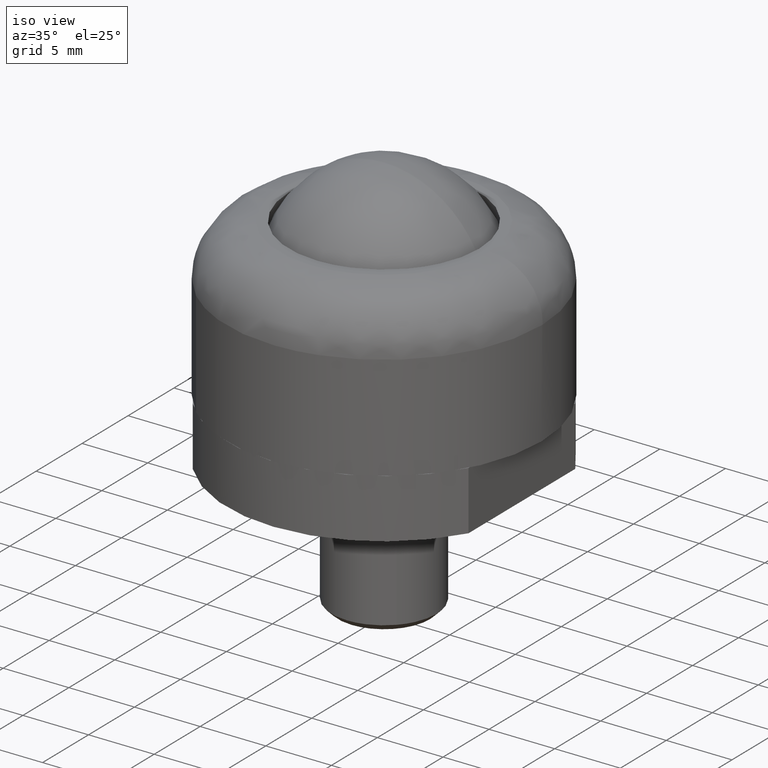
[diagram: clean part render]
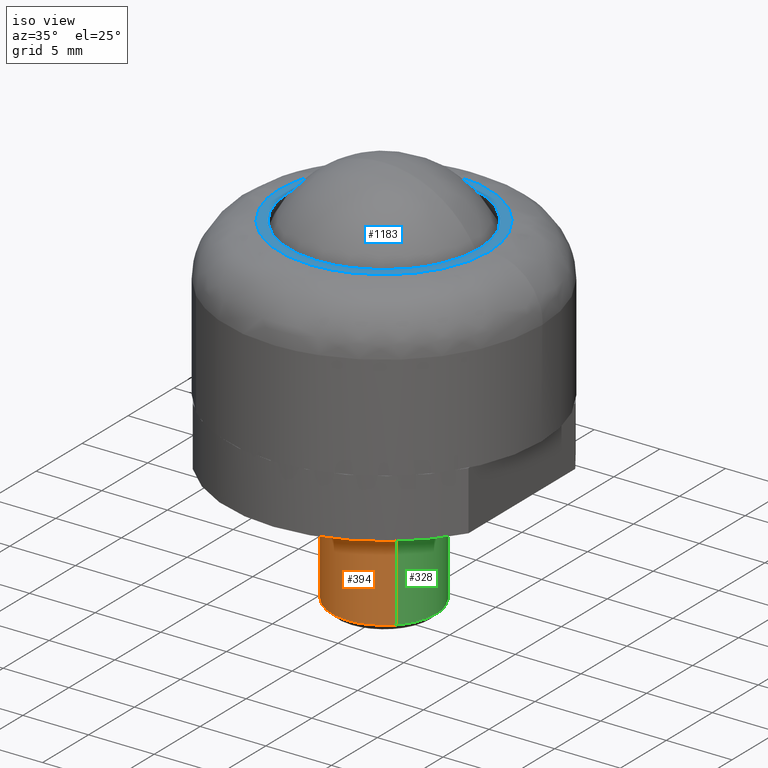
[diagram: same view with three faces highlighted in distinct colors, each labeled with its STEP entity id]
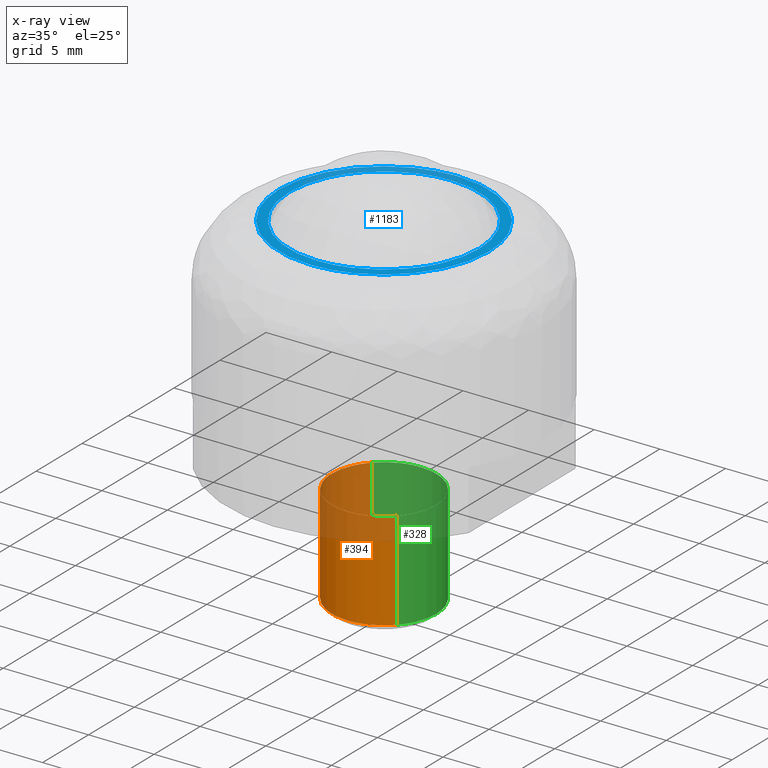
[diagram: x-ray of the same camera — body ghosted, the three highlighted faces saturated]
A machine part, iso view with three faces highlighted in distinct colors.
The next image is the same camera in x-ray (body ghosted, the three faces saturated) — at least one of them is partly hidden behind the body in this view.
Their STEP definitions:

[orange] entity #394 — the highlighted face is a freeform B-spline surface patch.
#109=CARTESIAN_POINT('',(-0.000000403236828,-3.999999999999980,-14.0));
#110=VERTEX_POINT('',#109);
#111=CARTESIAN_POINT('',(-2.702360932232386,-2.949109458302872,-13.999999949787229));
#112=VERTEX_POINT('',#111);
#113=CARTESIAN_POINT('',(-0.000000403236828,-3.999999999999980,-14.0));
#114=CARTESIAN_POINT('',(-0.278167836952644,-4.000048685927483,-13.999999994831359));
#115=CARTESIAN_POINT('',(-0.695388015147952,-3.956286404520441,-13.999999987078951));
#116=CARTESIAN_POINT('',(-1.308390601014381,-3.792701276067524,-13.999999975688700));
#117=CARTESIAN_POINT('',(-1.966955427198719,-3.518918987938443,-13.999999963451851));
#118=CARTESIAN_POINT('',(-2.440376931060388,-3.189324229551553,-13.999999954655170));
#119=CARTESIAN_POINT('',(-2.702360932232386,-2.949109458302872,-13.999999949787229));
#120=B_SPLINE_CURVE_WITH_KNOTS('',3,(#113,#114,#115,#116,#117,#118,#119),.UNSPECIFIED.,.F.,.U.,(4,1,1,1,4),(0.000000010413954,0.834490467376314,1.251737349873453,1.900782333701609,2.967075987039249),.UNSPECIFIED.);
#121=EDGE_CURVE('',#110,#112,#120,.T.);
#151=CARTESIAN_POINT('',(2.901497408814397,-2.753418235807070,-14.0));
#152=VERTEX_POINT('',#151);
#163=CARTESIAN_POINT('',(2.901497408814397,-2.753418235807070,-14.0));
#164=CARTESIAN_POINT('',(2.726940716344596,-2.937411264398880,-13.999999999999970));
#165=CARTESIAN_POINT('',(2.381075393225612,-3.238528325721102,-14.000000000000041));
#166=CARTESIAN_POINT('',(1.815662922786014,-3.581532204456942,-13.999999999999980));
#167=CARTESIAN_POINT('',(1.220451748592487,-3.828373434111331,-13.999999999999989));
#168=CARTESIAN_POINT('',(0.608683923174013,-3.970479055919756,-14.000000000000069));
#169=CARTESIAN_POINT('',(0.185984997623498,-4.000006531506661,-13.999999999999959));
#170=CARTESIAN_POINT('',(-0.000000403236828,-3.999999999999980,-14.0));
#171=B_SPLINE_CURVE_WITH_KNOTS('',3,(#163,#164,#165,#166,#167,#168,#169,#170),.UNSPECIFIED.,.F.,.U.,(4,1,1,1,1,4),(0.000000011243450,0.760858928234428,1.369552959612127,1.978233202727078,2.688373681699523,3.246334517595858),.UNSPECIFIED.);
#172=EDGE_CURVE('',#152,#110,#171,.T.);
#195=CARTESIAN_POINT('',(-4.0,0.0,-14.0));
#196=VERTEX_POINT('',#195);
#197=CARTESIAN_POINT('',(-2.702360932232386,-2.949109458302872,-13.999999949787229));
#198=CARTESIAN_POINT('',(-2.893394730014387,-2.774106049758989,-13.999999952766920));
#199=CARTESIAN_POINT('',(-3.183262002286620,-2.451335581721173,-13.999999958262521));
#200=CARTESIAN_POINT('',(-3.510124101917242,-1.941319656537292,-13.999999966946289));
#201=CARTESIAN_POINT('',(-3.775802720940005,-1.377713114645031,-13.999999976542471));
#202=CARTESIAN_POINT('',(-3.957740616849472,-0.725407266192422,-13.999999987648939));
#203=CARTESIAN_POINT('',(-4.000011620954692,-0.224528139693912,-13.999999996177049));
#204=CARTESIAN_POINT('',(-4.0,0.0,-14.0));
#205=B_SPLINE_CURVE_WITH_KNOTS('',3,(#197,#198,#199,#200,#201,#202,#203,#204),.UNSPECIFIED.,.F.,.U.,(4,1,1,1,1,4),(9.982578E-009,0.777222156433196,1.295373726180837,1.813510334534018,2.642558074383099,3.316148824474379),.UNSPECIFIED.);
#206=EDGE_CURVE('',#112,#196,#205,.T.);
#208=CARTESIAN_POINT('',(-2.901497408814396,2.753418235807069,-14.0));
#209=VERTEX_POINT('',#208);
#210=CARTESIAN_POINT('',(-4.0,0.0,-14.0));
#211=CARTESIAN_POINT('',(-4.000034488636911,0.268892826001609,-14.000000000000011));
#212=CARTESIAN_POINT('',(-3.950372442837322,0.759208619095613,-13.999999999999989));
#213=CARTESIAN_POINT('',(-3.767579752082468,1.383743951598321,-14.0));
#214=CARTESIAN_POINT('',(-3.459143000504768,2.061585654993756,-14.000000000000020));
#215=CARTESIAN_POINT('',(-3.152034080166087,2.489617425547130,-13.999999999999980));
#216=CARTESIAN_POINT('',(-2.901497408814396,2.753418235807069,-14.0));
#217=B_SPLINE_CURVE_WITH_KNOTS('',3,(#210,#211,#212,#213,#214,#215,#216),.UNSPECIFIED.,.F.,.U.,(4,1,1,1,4),(9.817746E-009,0.806674670906880,1.470999374270432,1.945504255010293,3.036890669432862),.UNSPECIFIED.);
#218=EDGE_CURVE('',#196,#209,#217,.T.);
#268=CARTESIAN_POINT('',(-2.901497408787624,2.753418235835281,-6.500000000000571));
#269=VERTEX_POINT('',#268);
#300=CARTESIAN_POINT('',(2.901497408787625,-2.753418235835282,-6.500000000000570));
#301=VERTEX_POINT('',#300);
#312=CARTESIAN_POINT('',(2.901497408787625,-2.753418235835282,-6.500000000000570));
#313=CARTESIAN_POINT('',(2.901497408814397,-2.753418235807070,-14.0));
#314=QUASI_UNIFORM_CURVE('',1,(#312,#313),.UNSPECIFIED.,.F.,.U.);
#315=EDGE_CURVE('',#301,#152,#314,.T.);
#321=CARTESIAN_POINT('',(-2.901497408787624,2.753418235835281,-6.500000000000571));
#322=CARTESIAN_POINT('',(-2.901497408814396,2.753418235807069,-14.0));
#323=QUASI_UNIFORM_CURVE('',1,(#321,#322),.UNSPECIFIED.,.F.,.U.);
#324=EDGE_CURVE('',#269,#209,#323,.T.);
#329=CARTESIAN_POINT('',(2.901497484049150,-2.753418302775015,-6.312499999999999));
#330=CARTESIAN_POINT('',(0.148079181274134,-5.654915786824165,-6.312499999999999));
#331=CARTESIAN_POINT('',(-2.753418302775015,-2.901497484049150,-6.312499999999999));
#332=CARTESIAN_POINT('',(-5.654915786824165,-0.148079181274134,-6.312499999999999));
#333=CARTESIAN_POINT('',(-2.901497484049150,2.753418302775015,-6.312499999999999));
#334=CARTESIAN_POINT('',(2.901497484049150,-2.753418302775015,-14.192187499999999));
#335=CARTESIAN_POINT('',(0.148079181274134,-5.654915786824165,-14.192187500000008));
#336=CARTESIAN_POINT('',(-2.753418302775015,-2.901497484049150,-14.192187499999999));
#337=CARTESIAN_POINT('',(-5.654915786824165,-0.148079181274134,-14.192187500000008));
#338=CARTESIAN_POINT('',(-2.901497484049150,2.753418302775015,-14.192187499999999));
#346=(BOUNDED_SURFACE()B_SPLINE_SURFACE(2,1,((#329,#334),(#330,#335),(#331,#336),(#332,#337),(#333,#338)),.UNSPECIFIED.,.F.,.F.,.U.)B_SPLINE_SURFACE_WITH_KNOTS((3,2,3),(2,2),(0.0,6.627416997969519,13.254833995939039),(0.0,7.879687500000001),.UNSPECIFIED.)GEOMETRIC_REPRESENTATION_ITEM()RATIONAL_B_SPLINE_SURFACE(((1.0,1.0),(0.707106781186548,0.707106781186548),(1.0,1.0),(0.707106781186548,0.707106781186548),(1.0,1.0)))REPRESENTATION_ITEM('')SURFACE());
#347=CARTESIAN_POINT('',(-4.0,0.0,-6.500000000000000));
#348=VERTEX_POINT('',#347);
#349=CARTESIAN_POINT('',(-4.0,0.0,-6.500000000000000));
#350=CARTESIAN_POINT('',(-4.000020706536152,0.237256699048129,-6.500000000000053));
#351=CARTESIAN_POINT('',(-3.956254858356761,0.727582353916053,-6.500000000000149));
#352=CARTESIAN_POINT('',(-3.772164963184092,1.385509602136072,-6.500000000000298));
#353=CARTESIAN_POINT('',(-3.441946959217473,2.088860231138878,-6.500000000000425));
#354=CARTESIAN_POINT('',(-3.130220220646658,2.512537778824505,-6.500000000000537));
#355=CARTESIAN_POINT('',(-2.901497408787624,2.753418235835281,-6.500000000000571));
#356=B_SPLINE_CURVE_WITH_KNOTS('',3,(#349,#350,#351,#352,#353,#354,#355),.UNSPECIFIED.,.F.,.U.,(4,1,1,1,4),(9.817583E-009,0.711771315727585,1.470999374289131,2.040410248701412,3.036890669471757),.UNSPECIFIED.);
#357=EDGE_CURVE('',#348,#269,#356,.T.);
#358=ORIENTED_EDGE('',*,*,#357,.T.);
#359=ORIENTED_EDGE('',*,*,#324,.T.);
#360=ORIENTED_EDGE('',*,*,#218,.F.);
#361=ORIENTED_EDGE('',*,*,#206,.F.);
#362=ORIENTED_EDGE('',*,*,#121,.F.);
#363=ORIENTED_EDGE('',*,*,#172,.F.);
#364=ORIENTED_EDGE('',*,*,#315,.F.);
#365=CARTESIAN_POINT('',(-0.000000403236828,-3.999999999999980,-6.499999999999999));
#366=VERTEX_POINT('',#365);
#367=CARTESIAN_POINT('',(2.901497408787625,-2.753418235835282,-6.500000000000570));
#368=CARTESIAN_POINT('',(2.703672179338519,-2.961954497806669,-6.500000000000532));
#369=CARTESIAN_POINT('',(2.379488328051620,-3.237006126279558,-6.500000000000449));
#370=CARTESIAN_POINT('',(1.814979416023491,-3.579464984478793,-6.500000000000392));
#371=CARTESIAN_POINT('',(1.347100671327258,-3.780476816707143,-6.500000000000181));
#372=CARTESIAN_POINT('',(0.710110521073291,-3.954231307327490,-6.500000000000276));
#373=CARTESIAN_POINT('',(0.287439678154750,-4.000048079848901,-6.499999999999970));
#374=CARTESIAN_POINT('',(-0.000000403236828,-3.999999999999980,-6.499999999999999));
#375=B_SPLINE_CURVE_WITH_KNOTS('',3,(#367,#368,#369,#370,#371,#372,#373,#374),.UNSPECIFIED.,.F.,.U.,(4,1,1,1,1,4),(0.000000011243476,0.862308347414134,1.268101326100487,1.978233202703376,2.384026181382074,3.246334517556965),.UNSPECIFIED.);
#376=EDGE_CURVE('',#301,#366,#375,.T.);
#377=ORIENTED_EDGE('',*,*,#376,.T.);
#378=CARTESIAN_POINT('',(-0.000000403236828,-3.999999999999980,-6.499999999999999));
#379=CARTESIAN_POINT('',(-0.409080881358765,-4.000178669040759,-6.499999999999996));
#380=CARTESIAN_POINT('',(-1.079827209264478,-3.896186344106689,-6.500000000000005));
#381=CARTESIAN_POINT('',(-1.880713377745128,-3.552754394014957,-6.500000000000012));
#382=CARTESIAN_POINT('',(-2.485841164571903,-3.159100338023738,-6.499999999999983));
#383=CARTESIAN_POINT('',(-2.967673194247834,-2.711504794303159,-6.500000000000028));
#384=CARTESIAN_POINT('',(-3.335216655596129,-2.228368859808155,-6.499999999999949));
#385=CARTESIAN_POINT('',(-3.670053199121317,-1.645841419573178,-6.500000000000058));
#386=CARTESIAN_POINT('',(-3.931050686856983,-0.916295714942578,-6.500000000000010));
#387=CARTESIAN_POINT('',(-4.000044877334141,-0.294524754276191,-6.499999999999973));
#388=CARTESIAN_POINT('',(-4.0,0.0,-6.500000000000000));
#389=B_SPLINE_CURVE_WITH_KNOTS('',3,(#378,#379,#380,#381,#382,#383,#384,#385,#386,#387,#388),.UNSPECIFIED.,.F.,.U.,(4,1,1,1,1,1,1,1,4),(0.000000036622038,1.227187744177851,2.012600243281060,2.601659474318702,3.387038318504441,3.976096362279301,4.417888127020078,5.399647185500147,6.283224504228948),.UNSPECIFIED.);
#390=EDGE_CURVE('',#366,#348,#389,.T.);
#391=ORIENTED_EDGE('',*,*,#390,.T.);
#392=EDGE_LOOP('',(#358,#359,#360,#361,#362,#363,#364,#377,#391));
#393=FACE_OUTER_BOUND('',#392,.T.);
#394=ADVANCED_FACE('',(#393),#346,.T.);

[blue] entity #1183 — the highlighted face is a freeform B-spline surface patch.
#875=CARTESIAN_POINT('',(-5.256962737219276,4.988671336458847,11.999999999995980));
#876=VERTEX_POINT('',#875);
#877=CARTESIAN_POINT('',(0.000000297426015,7.247240854283785,12.0));
#878=VERTEX_POINT('',#877);
#879=CARTESIAN_POINT('',(-5.256962737219276,4.988671336458847,11.999999999995980));
#880=CARTESIAN_POINT('',(-4.824807146085149,5.444360692292099,11.999999999996300));
#881=CARTESIAN_POINT('',(-4.164910214977581,5.979379744965896,11.999999999996851));
#882=CARTESIAN_POINT('',(-3.159751213976001,6.537905282122430,11.999999999997570));
#883=CARTESIAN_POINT('',(-2.325536756776154,6.890105403994554,11.999999999998090));
#884=CARTESIAN_POINT('',(-1.240660778071789,7.174962478575369,11.999999999999490));
#885=CARTESIAN_POINT('',(-0.428876816743742,7.247284513954469,11.999999999999400));
#886=CARTESIAN_POINT('',(0.000000297426015,7.247240854283785,12.0));
#887=B_SPLINE_CURVE_WITH_KNOTS('',3,(#879,#880,#881,#882,#883,#884,#885,#886),.UNSPECIFIED.,.F.,.U.,(4,1,1,1,1,4),(9.078425E-009,1.883988978013885,2.527304255712489,3.446308872447911,4.595088400484167,5.881712119419972),.UNSPECIFIED.);
#888=EDGE_CURVE('',#876,#878,#887,.T.);
#939=CARTESIAN_POINT('',(5.256962737219293,-4.988671336458864,11.999999999995980));
#940=VERTEX_POINT('',#939);
#946=CARTESIAN_POINT('',(7.247240854283791,0.0,12.0));
#947=VERTEX_POINT('',#946);
#948=CARTESIAN_POINT('',(7.247240854283791,0.0,12.0));
#949=CARTESIAN_POINT('',(7.247305735029219,-0.487181698342167,11.999999999999600));
#950=CARTESIAN_POINT('',(7.151525878170276,-1.432852871077156,11.999999999998851));
#951=CARTESIAN_POINT('',(6.730940769012391,-2.809377574150429,11.999999999997730));
#952=CARTESIAN_POINT('',(6.091039670716613,-4.002357343176384,11.999999999996790));
#953=CARTESIAN_POINT('',(5.533147050700467,-4.697660844674761,11.999999999996209));
#954=CARTESIAN_POINT('',(5.256962737219293,-4.988671336458864,11.999999999995980));
#955=B_SPLINE_CURVE_WITH_KNOTS('',3,(#948,#949,#950,#951,#952,#953,#954),.UNSPECIFIED.,.F.,.U.,(4,1,1,1,4),(7.844560E-009,1.461534121799407,2.837092763778933,4.298629818670379,5.502245350614077),.UNSPECIFIED.);
#956=EDGE_CURVE('',#947,#940,#955,.T.);
#958=CARTESIAN_POINT('',(0.000000297426015,7.247240854283785,12.0));
#959=CARTESIAN_POINT('',(0.489155871948853,7.247297330047289,12.000000000000011));
#960=CARTESIAN_POINT('',(1.437793517378041,7.150842976570969,11.999999999999989));
#961=CARTESIAN_POINT('',(2.718993751458292,6.757902878774590,12.000000000000041));
#962=CARTESIAN_POINT('',(3.923954843779281,6.142095022848119,11.999999999999931));
#963=CARTESIAN_POINT('',(4.891963000465323,5.396155553304094,12.000000000000099));
#964=CARTESIAN_POINT('',(5.785928910977111,4.421889711182399,11.999999999999870));
#965=CARTESIAN_POINT('',(6.424762944613385,3.433343197894263,12.000000000000570));
#966=CARTESIAN_POINT('',(6.851829517023872,2.419761584812757,11.999999999999771));
#967=CARTESIAN_POINT('',(7.160053269458248,1.319189617061382,12.000000000000140));
#968=CARTESIAN_POINT('',(7.247351850021314,0.533633069653856,11.999999999999980));
#969=CARTESIAN_POINT('',(7.247240854283791,0.0,12.0));
#970=B_SPLINE_CURVE_WITH_KNOTS('',3,(#958,#959,#960,#961,#962,#963,#964,#965,#966,#967,#968,#969),.UNSPECIFIED.,.F.,.U.,(4,1,1,1,1,1,1,1,1,4),(0.000000032947479,1.467457646778000,2.845989532820656,4.002180844816370,5.514120129355026,6.492405251628257,7.959871914419603,9.027126035985820,9.783092513500840,11.383957003770171),.UNSPECIFIED.);
#971=EDGE_CURVE('',#878,#947,#970,.T.);
#994=CARTESIAN_POINT('',(-7.247240854283791,0.0,12.0));
#995=VERTEX_POINT('',#994);
#996=CARTESIAN_POINT('',(-7.247240854283791,0.0,12.0));
#997=CARTESIAN_POINT('',(-7.247399600119799,0.616151337552538,11.999999999999510));
#998=CARTESIAN_POINT('',(-7.114870148782108,1.647734526824720,11.999999999998670));
#999=CARTESIAN_POINT('',(-6.662610385164340,2.921739774144355,11.999999999997680));
#1000=CARTESIAN_POINT('',(-6.085714459935689,3.997336259024675,11.999999999996721));
#1001=CARTESIAN_POINT('',(-5.592369715268278,4.635330833607652,11.999999999996360));
#1002=CARTESIAN_POINT('',(-5.256962737219276,4.988671336458847,11.999999999995980));
#1003=B_SPLINE_CURVE_WITH_KNOTS('',3,(#996,#997,#998,#999,#1000,#1001,#1002),.UNSPECIFIED.,.F.,.U.,(4,1,1,1,4),(7.845852E-009,1.848412591701337,3.095006801522973,4.040711236659594,5.502245350614067),.UNSPECIFIED.);
#1004=EDGE_CURVE('',#995,#876,#1003,.T.);
#1006=CARTESIAN_POINT('',(-0.000000297425916,-7.247240854283785,12.0));
#1007=VERTEX_POINT('',#1006);
#1008=CARTESIAN_POINT('',(-0.000000297425916,-7.247240854283785,12.0));
#1009=CARTESIAN_POINT('',(-0.622580329106436,-7.247410086486915,11.999999999999980));
#1010=CARTESIAN_POINT('',(-1.571133198876027,-7.124220017168261,12.000000000000069));
#1011=CARTESIAN_POINT('',(-2.894472582022212,-6.677986820061453,11.999999999999901));
#1012=CARTESIAN_POINT('',(-4.014016722922896,-6.088425706139806,12.000000000000320));
#1013=CARTESIAN_POINT('',(-4.965509503294764,-5.322112082667339,11.999999999999661));
#1014=CARTESIAN_POINT('',(-5.661070234696982,-4.549793621029393,12.000000000000050));
#1015=CARTESIAN_POINT('',(-6.256078014076634,-3.715987485292366,12.0));
#1016=CARTESIAN_POINT('',(-6.691360778446374,-2.851234747625134,11.999999999999989));
#1017=CARTESIAN_POINT('',(-7.010766209305704,-1.894085258232474,12.0));
#1018=CARTESIAN_POINT('',(-7.198026896958428,-1.022765950395861,12.0));
#1019=CARTESIAN_POINT('',(-7.247259983947497,-0.355744598396471,12.0));
#1020=CARTESIAN_POINT('',(-7.247240854283791,0.0,12.0));
#1021=B_SPLINE_CURVE_WITH_KNOTS('',3,(#1008,#1009,#1010,#1011,#1012,#1013,#1014,#1015,#1016,#1017,#1018,#1019,#1020),.UNSPECIFIED.,.F.,.U.,(4,1,1,1,1,1,1,1,1,1,4),(0.000000032949847,1.867677209044844,2.845989532822083,4.180052045780206,5.647529940665269,6.492405251628385,7.292843007855425,8.715843236272008,9.382872914135636,10.316724780423471,11.383957003770240),.UNSPECIFIED.);
#1022=EDGE_CURVE('',#1007,#995,#1021,.T.);
#1024=CARTESIAN_POINT('',(5.256962737219293,-4.988671336458864,11.999999999995980));
#1025=CARTESIAN_POINT('',(5.014472138320403,-5.244221212740564,11.999999999996129));
#1026=CARTESIAN_POINT('',(4.446717811184409,-5.761240691427637,11.999999999996589));
#1027=CARTESIAN_POINT('',(3.546680028075411,-6.351105356546346,11.999999999997330));
#1028=CARTESIAN_POINT('',(2.431225869268162,-6.864286300984578,11.999999999998121));
#1029=CARTESIAN_POINT('',(1.271317807348694,-7.176722057068716,11.999999999999060));
#1030=CARTESIAN_POINT('',(0.382920267137141,-7.247255338048872,11.999999999999650));
#1031=CARTESIAN_POINT('',(-0.000000297425916,-7.247240854283785,12.0));
#1032=B_SPLINE_CURVE_WITH_KNOTS('',3,(#1024,#1025,#1026,#1027,#1028,#1029,#1030,#1031),.UNSPECIFIED.,.F.,.U.,(4,1,1,1,1,4),(9.076632E-009,1.056868960483050,2.297547435508970,3.216552379597020,4.732942643098843,5.881712119419899),.UNSPECIFIED.);
#1033=EDGE_CURVE('',#940,#1007,#1032,.T.);
#1081=CARTESIAN_POINT('',(8.799199968988896,-8.799026324457822,12.0));
#1082=CARTESIAN_POINT('',(-8.799200398142338,-8.799026324457822,12.0));
#1083=CARTESIAN_POINT('',(8.799199968988896,8.799026753602794,12.0));
#1084=CARTESIAN_POINT('',(-8.799200398142338,8.799026753602794,12.0));
#1085=B_SPLINE_SURFACE_WITH_KNOTS('',1,1,((#1081,#1083),(#1082,#1084)),.UNSPECIFIED.,.F.,.F.,.U.,(2,2),(2,2),(0.0,17.598400367131230),(0.0,17.598053078060619),.UNSPECIFIED.);
#1086=CARTESIAN_POINT('',(-7.999368353823391,-0.100528319104922,12.0));
#1087=VERTEX_POINT('',#1086);
#1088=CARTESIAN_POINT('',(-8.0,0.0,12.0));
#1089=VERTEX_POINT('',#1088);
#1090=CARTESIAN_POINT('',(-7.999368353823391,-0.100528319104922,12.0));
#1091=CARTESIAN_POINT('',(-8.0,0.0,12.0));
#1092=QUASI_UNIFORM_CURVE('',1,(#1090,#1091),.UNSPECIFIED.,.F.,.U.);
#1093=EDGE_CURVE('',#1087,#1089,#1092,.T.);
#1094=ORIENTED_EDGE('',*,*,#1093,.F.);
#1095=CARTESIAN_POINT('',(0.050258764031957,-7.999842126982739,12.0));
#1096=VERTEX_POINT('',#1095);
#1097=CARTESIAN_POINT('',(0.050258764031957,-7.999842126982739,12.0));
#1098=CARTESIAN_POINT('',(-0.291969692002958,-8.002001624722414,12.0));
#1099=CARTESIAN_POINT('',(-1.009308690898889,-7.960417831828395,12.000000000000011));
#1100=CARTESIAN_POINT('',(-2.147877280366271,-7.738725314529022,11.999999999999950));
#1101=CARTESIAN_POINT('',(-3.240442216491117,-7.345918888468682,12.000000000000160));
#1102=CARTESIAN_POINT('',(-4.291294910956784,-6.782969535053945,11.999999999999790));
#1103=CARTESIAN_POINT('',(-5.319696521452464,-6.029499938841547,12.000000000000171));
#1104=CARTESIAN_POINT('',(-6.237553441284248,-5.072000818602808,12.000000000000030));
#1105=CARTESIAN_POINT('',(-6.895158595428486,-4.096394659710724,11.999999999999940));
#1106=CARTESIAN_POINT('',(-7.376359571363047,-3.151259520485609,12.000000000000190));
#1107=CARTESIAN_POINT('',(-7.680921348950090,-2.305472377029266,11.999999999999950));
#1108=CARTESIAN_POINT('',(-7.926310511984541,-1.240471974038401,12.0));
#1109=CARTESIAN_POINT('',(-7.993671507442953,-0.556807913680777,12.000000000000011));
#1110=CARTESIAN_POINT('',(-7.999368353823391,-0.100528319104922,12.0));
#1111=B_SPLINE_CURVE_WITH_KNOTS('',3,(#1097,#1098,#1099,#1100,#1101,#1102,#1103,#1104,#1105,#1106,#1107,#1108,#1109,#1110),.UNSPECIFIED.,.F.,.U.,(4,1,1,1,1,1,1,1,1,1,1,4),(0.000000032343642,1.026706891044071,2.151201481715830,3.471268425500442,4.497982534330774,5.720274910603725,7.284759213213086,8.458154736016571,9.240414605485842,10.462700141200481,11.147179417200739,12.516118221549579),.UNSPECIFIED.);
#1112=EDGE_CURVE('',#1096,#1087,#1111,.T.);
#1113=ORIENTED_EDGE('',*,*,#1112,.F.);
#1114=CARTESIAN_POINT('',(8.0,0.0,12.0));
#1115=VERTEX_POINT('',#1114);
#1116=CARTESIAN_POINT('',(8.0,0.0,12.0));
#1117=CARTESIAN_POINT('',(8.000007600070280,-0.342235364035424,12.0));
#1118=CARTESIAN_POINT('',(7.952872440890642,-1.075597087077423,12.000000000000011));
#1119=CARTESIAN_POINT('',(7.691091632250863,-2.356401361394689,11.999999999999959));
#1120=CARTESIAN_POINT('',(7.171812730929088,-3.649187877849604,12.000000000000030));
#1121=CARTESIAN_POINT('',(6.450150170503080,-4.778970361939138,11.999999999999959));
#1122=CARTESIAN_POINT('',(5.660638851825850,-5.693878554737453,12.000000000000011));
#1123=CARTESIAN_POINT('',(4.831300056676323,-6.409815986532683,12.000000000000030));
#1124=CARTESIAN_POINT('',(3.897673977444101,-7.010298109555170,11.999999999999940));
#1125=CARTESIAN_POINT('',(2.807380275182842,-7.532101224692839,12.000000000000080));
#1126=CARTESIAN_POINT('',(1.500126976867151,-7.905486006509801,12.0));
#1127=CARTESIAN_POINT('',(0.506562304105791,-7.997003475008324,11.999999999999920));
#1128=CARTESIAN_POINT('',(0.050258764031957,-7.999842126982739,12.0));
#1129=B_SPLINE_CURVE_WITH_KNOTS('',3,(#1116,#1117,#1118,#1119,#1120,#1121,#1122,#1123,#1124,#1125,#1126,#1127,#1128),.UNSPECIFIED.,.F.,.U.,(4,1,1,1,1,1,1,1,1,1,4),(0.000000032334984,1.026707938994770,2.200099898308638,3.911291691568414,5.182463448415021,6.209194250977256,7.529226238229244,8.458163369469572,9.533772472657008,11.147190795456609,12.516130997089990),.UNSPECIFIED.);
#1130=EDGE_CURVE('',#1115,#1096,#1129,.T.);
#1131=ORIENTED_EDGE('',*,*,#1130,.F.);
#1132=CARTESIAN_POINT('',(7.999368353823392,0.100528319104922,12.0));
#1133=VERTEX_POINT('',#1132);
#1134=CARTESIAN_POINT('',(7.999368353823392,0.100528319104922,12.0));
#1135=CARTESIAN_POINT('',(8.0,0.0,12.0));
#1136=QUASI_UNIFORM_CURVE('',1,(#1134,#1135),.UNSPECIFIED.,.F.,.U.);
#1137=EDGE_CURVE('',#1133,#1115,#1136,.T.);
#1138=ORIENTED_EDGE('',*,*,#1137,.F.);
#1139=CARTESIAN_POINT('',(-0.050258764031964,7.999842126982737,12.0));
#1140=VERTEX_POINT('',#1139);
#1141=CARTESIAN_POINT('',(-0.050258764031964,7.999842126982737,12.0));
#1142=CARTESIAN_POINT('',(0.357154555699040,8.002425290386762,12.0));
#1143=CARTESIAN_POINT('',(1.090851420045500,7.950863696749345,12.000000000000030));
#1144=CARTESIAN_POINT('',(2.193254485296868,7.718645646165750,11.999999999999950));
#1145=CARTESIAN_POINT('',(3.301651557130126,7.324017649611078,12.000000000000020));
#1146=CARTESIAN_POINT('',(4.334626259802317,6.758405271722078,12.000000000000020));
#1147=CARTESIAN_POINT('',(5.194013578447635,6.108249226758629,11.999999999999950));
#1148=CARTESIAN_POINT('',(5.889519008455503,5.442226217680688,12.000000000000190));
#1149=CARTESIAN_POINT('',(6.542729858068612,4.647374056209345,11.999999999999700));
#1150=CARTESIAN_POINT('',(7.055495811261968,3.811693877314252,12.000000000000419));
#1151=CARTESIAN_POINT('',(7.512364852848422,2.818696375205685,11.999999999999799));
#1152=CARTESIAN_POINT('',(7.879499771843939,1.631033684879788,12.000000000000050));
#1153=CARTESIAN_POINT('',(7.992684656732818,0.638291297467462,12.000000000000011));
#1154=CARTESIAN_POINT('',(7.999368353823392,0.100528319104922,12.0));
#1155=B_SPLINE_CURVE_WITH_KNOTS('',3,(#1141,#1142,#1143,#1144,#1145,#1146,#1147,#1148,#1149,#1150,#1151,#1152,#1153,#1154),.UNSPECIFIED.,.F.,.U.,(4,1,1,1,1,1,1,1,1,1,1,4),(0.000000032343547,1.222264099490792,2.200097652612874,3.373486496186814,4.742442092765367,5.720274910603560,6.600287859702536,7.626997929572654,8.800393520929191,9.533762741287321,10.902720535676361,12.516118221549579),.UNSPECIFIED.);
#1156=EDGE_CURVE('',#1140,#1133,#1155,.T.);
#1157=ORIENTED_EDGE('',*,*,#1156,.F.);
#1158=CARTESIAN_POINT('',(-8.0,0.0,12.0));
#1159=CARTESIAN_POINT('',(-8.000167200685498,0.635601386879480,11.999999999999989));
#1160=CARTESIAN_POINT('',(-7.886714080959502,1.580739554100270,12.0));
#1161=CARTESIAN_POINT('',(-7.471901536628736,2.939060136856544,12.000000000000011));
#1162=CARTESIAN_POINT('',(-6.966866089063655,4.003301260853619,11.999999999999989));
#1163=CARTESIAN_POINT('',(-6.214015192261872,5.091953772995347,12.000000000000121));
#1164=CARTESIAN_POINT('',(-5.240968754148267,6.107805106585851,11.999999999999890));
#1165=CARTESIAN_POINT('',(-4.051930029535929,6.952053254056494,12.000000000000080));
#1166=CARTESIAN_POINT('',(-2.833614687808865,7.512222829160316,11.999999999999989));
#1167=CARTESIAN_POINT('',(-1.532599358545238,7.892485861523683,11.999999999999989));
#1168=CARTESIAN_POINT('',(-0.620650114664465,7.996350830415198,12.000000000000050));
#1169=CARTESIAN_POINT('',(-0.050258764031964,7.999842126982737,12.0));
#1170=B_SPLINE_CURVE_WITH_KNOTS('',3,(#1158,#1159,#1160,#1161,#1162,#1163,#1164,#1165,#1166,#1167,#1168,#1169),.UNSPECIFIED.,.F.,.U.,(4,1,1,1,1,1,1,1,1,4),(0.000000032333086,1.906745798771464,2.835684065853055,4.253530672808795,5.426918181791498,6.795850172900959,8.458163369469622,9.778230117088448,10.804950981445961,12.516130997089990),.UNSPECIFIED.);
#1171=EDGE_CURVE('',#1089,#1140,#1170,.T.);
#1172=ORIENTED_EDGE('',*,*,#1171,.F.);
#1173=EDGE_LOOP('',(#1094,#1113,#1131,#1138,#1157,#1172));
#1174=FACE_OUTER_BOUND('',#1173,.T.);
#1175=ORIENTED_EDGE('',*,*,#971,.T.);
#1176=ORIENTED_EDGE('',*,*,#956,.T.);
#1177=ORIENTED_EDGE('',*,*,#1033,.T.);
#1178=ORIENTED_EDGE('',*,*,#1022,.T.);
#1179=ORIENTED_EDGE('',*,*,#1004,.T.);
#1180=ORIENTED_EDGE('',*,*,#888,.T.);
#1181=EDGE_LOOP('',(#1175,#1176,#1177,#1178,#1179,#1180));
#1182=FACE_BOUND('',#1181,.T.);
#1183=ADVANCED_FACE('',(#1174,#1182),#1085,.F.);

[green] entity #328 — the highlighted face is a freeform B-spline surface patch.
#131=CARTESIAN_POINT('',(2.702360932232388,2.949109458302873,-13.999999949787229));
#132=VERTEX_POINT('',#131);
#138=CARTESIAN_POINT('',(4.0,0.0,-14.0));
#139=VERTEX_POINT('',#138);
#140=CARTESIAN_POINT('',(2.702360932232388,2.949109458302873,-13.999999949787229));
#141=CARTESIAN_POINT('',(2.867912801394973,2.797431581284251,-13.999999952369739));
#142=CARTESIAN_POINT('',(3.161617682324592,2.478836240992448,-13.999999957794310));
#143=CARTESIAN_POINT('',(3.533537253605497,1.914790948996870,-13.999999967397949));
#144=CARTESIAN_POINT('',(3.771012167713685,1.375078848809598,-13.999999976587400));
#145=CARTESIAN_POINT('',(3.952222472188465,0.725380250202502,-13.999999987649240));
#146=CARTESIAN_POINT('',(4.000062840095223,0.293622550261448,-13.999999995000749));
#147=CARTESIAN_POINT('',(4.0,0.0,-14.0));
#148=B_SPLINE_CURVE_WITH_KNOTS('',3,(#140,#141,#142,#143,#144,#145,#146,#147),.UNSPECIFIED.,.F.,.U.,(4,1,1,1,1,4),(9.982383E-009,0.673590760080704,1.295373726180789,2.020775108285477,2.435296563679113,3.316148824474378),.UNSPECIFIED.);
#149=EDGE_CURVE('',#132,#139,#148,.T.);
#151=CARTESIAN_POINT('',(2.901497408814397,-2.753418235807070,-14.0));
#152=VERTEX_POINT('',#151);
#153=CARTESIAN_POINT('',(4.0,0.0,-14.0));
#154=CARTESIAN_POINT('',(4.000033010973305,-0.268891600280768,-14.0));
#155=CARTESIAN_POINT('',(3.950373144978707,-0.759209951770743,-13.999999999999989));
#156=CARTESIAN_POINT('',(3.758668958807854,-1.414212846602739,-14.000000000000011));
#157=CARTESIAN_POINT('',(3.441955997775472,-2.088862866402805,-14.000000000000041));
#158=CARTESIAN_POINT('',(3.130217443786845,-2.512536986541078,-13.999999999999909));
#159=CARTESIAN_POINT('',(2.901497408814397,-2.753418235807070,-14.0));
#160=B_SPLINE_CURVE_WITH_KNOTS('',3,(#153,#154,#155,#156,#157,#158,#159),.UNSPECIFIED.,.F.,.U.,(4,1,1,1,4),(9.817623E-009,0.806674670906784,1.470999374270353,2.040410248675329,3.036890669432861),.UNSPECIFIED.);
#161=EDGE_CURVE('',#139,#152,#160,.T.);
#208=CARTESIAN_POINT('',(-2.901497408814396,2.753418235807069,-14.0));
#209=VERTEX_POINT('',#208);
#220=CARTESIAN_POINT('',(0.000000403236834,3.999999999999980,-14.0));
#221=VERTEX_POINT('',#220);
#222=CARTESIAN_POINT('',(-2.901497408814396,2.753418235807069,-14.0));
#223=CARTESIAN_POINT('',(-2.657164804238196,3.011068715994605,-14.000000000000020));
#224=CARTESIAN_POINT('',(-2.192219841881486,3.385574770596162,-14.000000000000020));
#225=CARTESIAN_POINT('',(-1.476101175929619,3.737250136890732,-14.0));
#226=CARTESIAN_POINT('',(-0.777744573326314,3.946906319804067,-14.0));
#227=CARTESIAN_POINT('',(-0.287438570940692,4.000047574809071,-13.999999999999980));
#228=CARTESIAN_POINT('',(0.000000403236834,3.999999999999980,-14.0));
#229=B_SPLINE_CURVE_WITH_KNOTS('',3,(#222,#223,#224,#225,#226,#227,#228),.UNSPECIFIED.,.F.,.U.,(4,1,1,1,4),(0.000000011243441,1.065206428523085,1.775329960132973,2.384026181410644,3.246334517595862),.UNSPECIFIED.);
#230=EDGE_CURVE('',#209,#221,#229,.T.);
#232=CARTESIAN_POINT('',(0.000000403236834,3.999999999999980,-14.0));
#233=CARTESIAN_POINT('',(0.278167758323633,4.000048865439355,-13.999999994831310));
#234=CARTESIAN_POINT('',(0.695388034853283,3.956286387999899,-13.999999987079010));
#235=CARTESIAN_POINT('',(1.308390526454853,3.792701338421392,-13.999999975688670));
#236=CARTESIAN_POINT('',(1.966955526993359,3.518918909443784,-13.999999963451881));
#237=CARTESIAN_POINT('',(2.440376819173218,3.189324304212764,-13.999999954655220));
#238=CARTESIAN_POINT('',(2.702360932232388,2.949109458302873,-13.999999949787229));
#239=B_SPLINE_CURVE_WITH_KNOTS('',3,(#232,#233,#234,#235,#236,#237,#238),.UNSPECIFIED.,.F.,.U.,(4,1,1,1,4),(0.000000010414363,0.834490467376560,1.251737349873610,1.900782333701657,2.967075987039245),.UNSPECIFIED.);
#240=EDGE_CURVE('',#221,#132,#239,.T.);
#250=CARTESIAN_POINT('',(-2.901497484049150,2.753418302775015,-6.312499999999999));
#251=CARTESIAN_POINT('',(-0.148079181274134,5.654915786824165,-6.312499999999999));
#252=CARTESIAN_POINT('',(2.753418302775015,2.901497484049150,-6.312499999999999));
#253=CARTESIAN_POINT('',(5.654915786824165,0.148079181274134,-6.312499999999999));
#254=CARTESIAN_POINT('',(2.901497484049150,-2.753418302775015,-6.312499999999999));
#255=CARTESIAN_POINT('',(-2.901497484049150,2.753418302775015,-14.192187499999999));
#256=CARTESIAN_POINT('',(-0.148079181274134,5.654915786824165,-14.192187500000008));
#257=CARTESIAN_POINT('',(2.753418302775015,2.901497484049150,-14.192187499999999));
#258=CARTESIAN_POINT('',(5.654915786824165,0.148079181274134,-14.192187500000008));
#259=CARTESIAN_POINT('',(2.901497484049150,-2.753418302775015,-14.192187499999999));
#267=(BOUNDED_SURFACE()B_SPLINE_SURFACE(2,1,((#250,#255),(#251,#256),(#252,#257),(#253,#258),(#254,#259)),.UNSPECIFIED.,.F.,.F.,.U.)B_SPLINE_SURFACE_WITH_KNOTS((3,2,3),(2,2),(0.0,6.627416997969519,13.254833995939039),(0.0,7.879687500000001),.UNSPECIFIED.)GEOMETRIC_REPRESENTATION_ITEM()RATIONAL_B_SPLINE_SURFACE(((1.0,1.0),(0.707106781186548,0.707106781186548),(1.0,1.0),(0.707106781186548,0.707106781186548),(1.0,1.0)))REPRESENTATION_ITEM('')SURFACE());
#268=CARTESIAN_POINT('',(-2.901497408787624,2.753418235835281,-6.500000000000571));
#269=VERTEX_POINT('',#268);
#270=CARTESIAN_POINT('',(0.000000403236834,3.999999999999980,-6.500000000000000));
#271=VERTEX_POINT('',#270);
#272=CARTESIAN_POINT('',(-2.901497408787624,2.753418235835281,-6.500000000000571));
#273=CARTESIAN_POINT('',(-2.726940514552255,2.937410872270670,-6.500000000000545));
#274=CARTESIAN_POINT('',(-2.406693041003537,3.216218892233681,-6.500000000000474));
#275=CARTESIAN_POINT('',(-1.846172370101352,3.566060985520752,-6.500000000000358));
#276=CARTESIAN_POINT('',(-1.315908659581893,3.793883348316661,-6.500000000000259));
#277=CARTESIAN_POINT('',(-0.676304195470553,3.959651874093964,-6.500000000000129));
#278=CARTESIAN_POINT('',(-0.253619973499714,4.000032986094507,-6.500000000000051));
#279=CARTESIAN_POINT('',(0.000000403236834,3.999999999999980,-6.500000000000000));
#280=B_SPLINE_CURVE_WITH_KNOTS('',3,(#272,#273,#274,#275,#276,#277,#278,#279),.UNSPECIFIED.,.F.,.U.,(4,1,1,1,1,4),(0.000000011243490,0.760858928225358,1.268101326100524,1.978233202703393,2.485475600570905,3.246334517556969),.UNSPECIFIED.);
#281=EDGE_CURVE('',#269,#271,#280,.T.);
#282=ORIENTED_EDGE('',*,*,#281,.T.);
#283=CARTESIAN_POINT('',(4.0,0.0,-6.500000000000000));
#284=VERTEX_POINT('',#283);
#285=CARTESIAN_POINT('',(0.000000403236834,3.999999999999980,-6.500000000000000));
#286=CARTESIAN_POINT('',(0.212708797387579,4.000011984970103,-6.499999999999995));
#287=CARTESIAN_POINT('',(0.654490273671162,3.964680221989648,-6.500000000000005));
#288=CARTESIAN_POINT('',(1.371393743686258,3.785159049091369,-6.499999999999998));
#289=CARTESIAN_POINT('',(2.026194216407130,3.475454432056590,-6.500000000000013));
#290=CARTESIAN_POINT('',(2.611246789433310,3.052528963660934,-6.499999999999967));
#291=CARTESIAN_POINT('',(3.087386017471337,2.576424616007238,-6.500000000000005));
#292=CARTESIAN_POINT('',(3.443774411597763,2.063713362663766,-6.500000000000000));
#293=CARTESIAN_POINT('',(3.713054024199434,1.520446712135031,-6.500000000000006));
#294=CARTESIAN_POINT('',(3.933351089206949,0.867174346989980,-6.499999999999996));
#295=CARTESIAN_POINT('',(4.000085123525079,0.327255270009867,-6.500000000000006));
#296=CARTESIAN_POINT('',(4.0,0.0,-6.500000000000000));
#297=B_SPLINE_CURVE_WITH_KNOTS('',3,(#285,#286,#287,#288,#289,#290,#291,#292,#293,#294,#295,#296),.UNSPECIFIED.,.F.,.U.,(4,1,1,1,1,1,1,1,1,4),(0.000000036621924,0.638128353469766,1.325365729514399,2.208947883671235,2.798002264872807,3.485220035432262,4.221535528173199,4.663329996111894,5.301478125457559,6.283224504228948),.UNSPECIFIED.);
#298=EDGE_CURVE('',#271,#284,#297,.T.);
#299=ORIENTED_EDGE('',*,*,#298,.T.);
#300=CARTESIAN_POINT('',(2.901497408787625,-2.753418235835282,-6.500000000000570));
#301=VERTEX_POINT('',#300);
#302=CARTESIAN_POINT('',(4.0,0.0,-6.500000000000000));
#303=CARTESIAN_POINT('',(4.000037080304240,-0.268892410037022,-6.500000000000058));
#304=CARTESIAN_POINT('',(3.950368382636870,-0.759208825914726,-6.500000000000154));
#305=CARTESIAN_POINT('',(3.758670482752525,-1.414213176564007,-6.500000000000298));
#306=CARTESIAN_POINT('',(3.441955385042240,-2.088862740631300,-6.500000000000427));
#307=CARTESIAN_POINT('',(3.130217636587454,-2.512537021330153,-6.500000000000532));
#308=CARTESIAN_POINT('',(2.901497408787625,-2.753418235835282,-6.500000000000570));
#309=B_SPLINE_CURVE_WITH_KNOTS('',3,(#302,#303,#304,#305,#306,#307,#308),.UNSPECIFIED.,.F.,.U.,(4,1,1,1,4),(9.817440E-009,0.806674670916975,1.470999374289094,2.040410248701393,3.036890669471756),.UNSPECIFIED.);
#310=EDGE_CURVE('',#284,#301,#309,.T.);
#311=ORIENTED_EDGE('',*,*,#310,.T.);
#312=CARTESIAN_POINT('',(2.901497408787625,-2.753418235835282,-6.500000000000570));
#313=CARTESIAN_POINT('',(2.901497408814397,-2.753418235807070,-14.0));
#314=QUASI_UNIFORM_CURVE('',1,(#312,#313),.UNSPECIFIED.,.F.,.U.);
#315=EDGE_CURVE('',#301,#152,#314,.T.);
#316=ORIENTED_EDGE('',*,*,#315,.T.);
#317=ORIENTED_EDGE('',*,*,#161,.F.);
#318=ORIENTED_EDGE('',*,*,#149,.F.);
#319=ORIENTED_EDGE('',*,*,#240,.F.);
#320=ORIENTED_EDGE('',*,*,#230,.F.);
#321=CARTESIAN_POINT('',(-2.901497408787624,2.753418235835281,-6.500000000000571));
#322=CARTESIAN_POINT('',(-2.901497408814396,2.753418235807069,-14.0));
#323=QUASI_UNIFORM_CURVE('',1,(#321,#322),.UNSPECIFIED.,.F.,.U.);
#324=EDGE_CURVE('',#269,#209,#323,.T.);
#325=ORIENTED_EDGE('',*,*,#324,.F.);
#326=EDGE_LOOP('',(#282,#299,#311,#316,#317,#318,#319,#320,#325));
#327=FACE_OUTER_BOUND('',#326,.T.);
#328=ADVANCED_FACE('',(#327),#267,.T.);